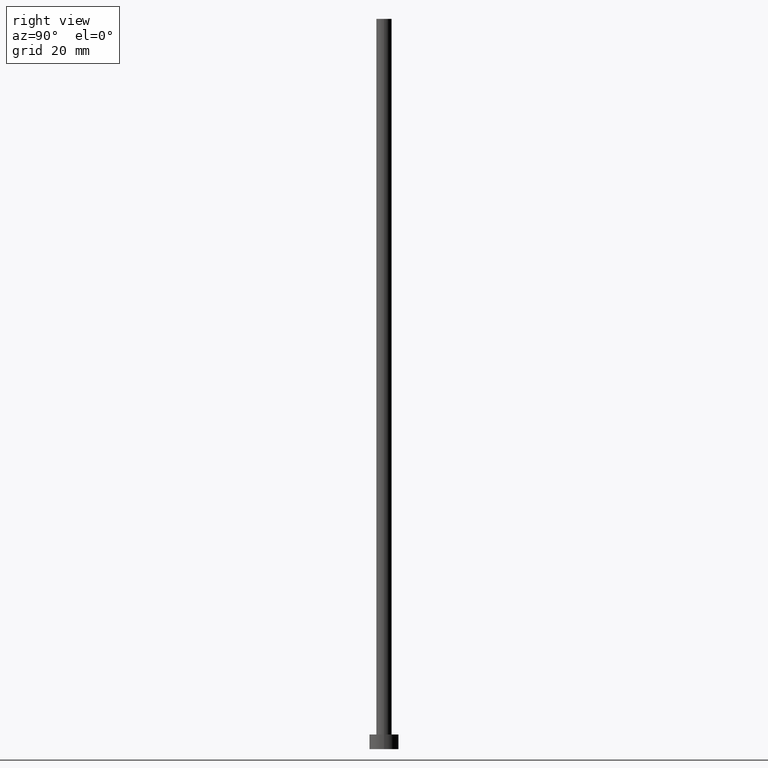
[diagram: clean part render]
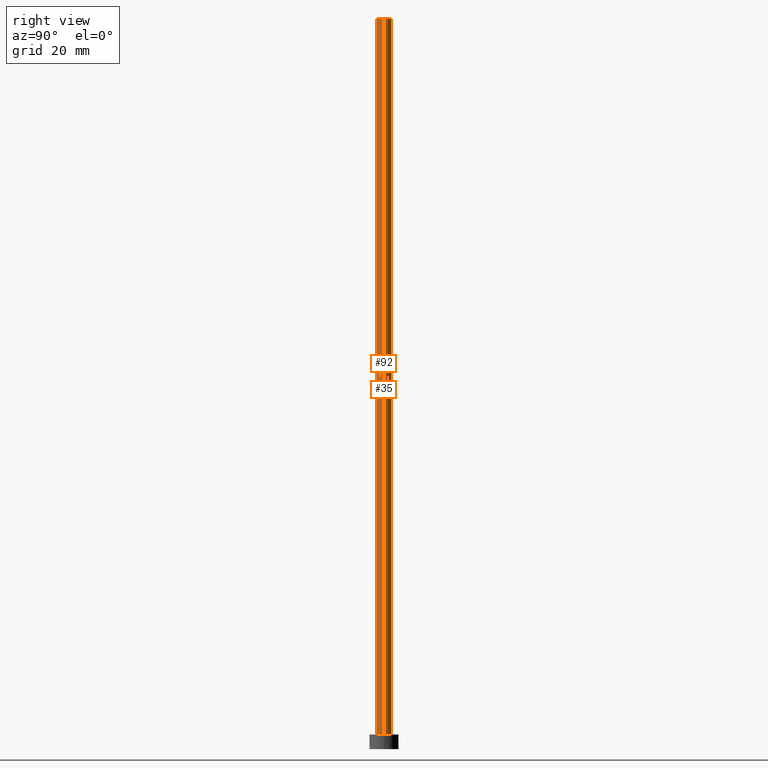
[diagram: same view with one multi-face feature highlighted, each face labeled with its STEP entity id]
A machine part, right view. The highlighted faces form ONE feature: a constant-radius fillet chain: 2 tangent blend faces with common blend radius 2.1 mm. The faces share edges in the B-rep.
Their STEP definitions:
[1] entity #92 (Cylinder):
#5 = CARTESIAN_POINT ( 'NONE',  ( 2.100000000000000089, 2.571758278209441957E-16, 4.000000000000000000 ) ) ;
#20 = DIRECTION ( 'NONE',  ( 1.000000000000000000, 0.000000000000000000, 0.000000000000000000 ) ) ;
#23 = ORIENTED_EDGE ( 'NONE', *, *, #87, .T. ) ;
#26 = EDGE_CURVE ( 'NONE', #118, #95, #142, .T. ) ;
#27 = CARTESIAN_POINT ( 'NONE',  ( -2.100000000000000089, 0.000000000000000000, 200.0000000000000000 ) ) ;
#29 = ORIENTED_EDGE ( 'NONE', *, *, #227, .F. ) ;
#36 = VERTEX_POINT ( 'NONE', #126 ) ;
#45 = CARTESIAN_POINT ( 'NONE',  ( -2.100000000000000089, 0.000000000000000000, 200.0000000000000000 ) ) ;
#49 = EDGE_LOOP ( 'NONE', ( #137, #29, #23, #176 ) ) ;
#63 = LINE ( 'NONE', #117, #232 ) ;
#77 = DIRECTION ( 'NONE',  ( -0.000000000000000000, -0.000000000000000000, -1.000000000000000000 ) ) ;
#80 = DIRECTION ( 'NONE',  ( 0.000000000000000000, 0.000000000000000000, 1.000000000000000000 ) ) ;
#85 = DIRECTION ( 'NONE',  ( -0.000000000000000000, -0.000000000000000000, -1.000000000000000000 ) ) ;
#87 = EDGE_CURVE ( 'NONE', #149, #118, #91, .T. ) ;
#91 = LINE ( 'NONE', #27, #157 ) ;
#92 = ADVANCED_FACE ( 'NONE', ( #177 ), #251, .T. ) ;
#95 = VERTEX_POINT ( 'NONE', #5 ) ;
#102 = CARTESIAN_POINT ( 'NONE',  ( 0.000000000000000000, 0.000000000000000000, 200.0000000000000000 ) ) ;
#117 = CARTESIAN_POINT ( 'NONE',  ( 2.100000000000000089, 2.571758278209441957E-16, 200.0000000000000000 ) ) ;
#118 = VERTEX_POINT ( 'NONE', #200 ) ;
#125 = EDGE_CURVE ( 'NONE', #36, #95, #63, .T. ) ;
#126 = CARTESIAN_POINT ( 'NONE',  ( 2.100000000000000089, 2.571758278209441957E-16, 200.0000000000000000 ) ) ;
#127 = DIRECTION ( 'NONE',  ( 1.000000000000000000, 0.000000000000000000, 0.000000000000000000 ) ) ;
#128 = CIRCLE ( 'NONE', #233, 2.100000000000000089 ) ;
#137 = ORIENTED_EDGE ( 'NONE', *, *, #125, .F. ) ;
#142 = CIRCLE ( 'NONE', #185, 2.100000000000000089 ) ;
#148 = DIRECTION ( 'NONE',  ( 0.000000000000000000, 0.000000000000000000, 1.000000000000000000 ) ) ;
#149 = VERTEX_POINT ( 'NONE', #45 ) ;
#157 = VECTOR ( 'NONE', #85, 1000.000000000000000 ) ;
#175 = CARTESIAN_POINT ( 'NONE',  ( 0.000000000000000000, 0.000000000000000000, 4.000000000000000000 ) ) ;
#176 = ORIENTED_EDGE ( 'NONE', *, *, #26, .T. ) ;
#177 = FACE_OUTER_BOUND ( 'NONE', #49, .T. ) ;
#185 = AXIS2_PLACEMENT_3D ( 'NONE', #175, #148, #127 ) ;
#187 = DIRECTION ( 'NONE',  ( -0.000000000000000000, -0.000000000000000000, -1.000000000000000000 ) ) ;
#190 = AXIS2_PLACEMENT_3D ( 'NONE', #225, #187, #220 ) ;
#200 = CARTESIAN_POINT ( 'NONE',  ( -2.100000000000000089, 0.000000000000000000, 4.000000000000000000 ) ) ;
#220 = DIRECTION ( 'NONE',  ( -1.000000000000000000, 0.000000000000000000, 0.000000000000000000 ) ) ;
#225 = CARTESIAN_POINT ( 'NONE',  ( 0.000000000000000000, 0.000000000000000000, 200.0000000000000000 ) ) ;
#227 = EDGE_CURVE ( 'NONE', #149, #36, #128, .T. ) ;
#232 = VECTOR ( 'NONE', #77, 1000.000000000000000 ) ;
#233 = AXIS2_PLACEMENT_3D ( 'NONE', #102, #80, #20 ) ;
#251 = CYLINDRICAL_SURFACE ( 'NONE', #190, 2.100000000000000089 ) ;
[2] entity #35 (Cylinder):
#5 = CARTESIAN_POINT ( 'NONE',  ( 2.100000000000000089, 2.571758278209441957E-16, 4.000000000000000000 ) ) ;
#21 = ORIENTED_EDGE ( 'NONE', *, *, #97, .T. ) ;
#27 = CARTESIAN_POINT ( 'NONE',  ( -2.100000000000000089, 0.000000000000000000, 200.0000000000000000 ) ) ;
#34 = CARTESIAN_POINT ( 'NONE',  ( 0.000000000000000000, 0.000000000000000000, 200.0000000000000000 ) ) ;
#35 = ADVANCED_FACE ( 'NONE', ( #181 ), #52, .T. ) ;
#36 = VERTEX_POINT ( 'NONE', #126 ) ;
#37 = CIRCLE ( 'NONE', #90, 2.100000000000000089 ) ;
#45 = CARTESIAN_POINT ( 'NONE',  ( -2.100000000000000089, 0.000000000000000000, 200.0000000000000000 ) ) ;
#47 = DIRECTION ( 'NONE',  ( -0.000000000000000000, -0.000000000000000000, -1.000000000000000000 ) ) ;
#50 = DIRECTION ( 'NONE',  ( -1.000000000000000000, 0.000000000000000000, 0.000000000000000000 ) ) ;
#52 = CYLINDRICAL_SURFACE ( 'NONE', #226, 2.100000000000000089 ) ;
#53 = CIRCLE ( 'NONE', #119, 2.100000000000000089 ) ;
#62 = EDGE_CURVE ( 'NONE', #36, #149, #53, .T. ) ;
#63 = LINE ( 'NONE', #117, #232 ) ;
#77 = DIRECTION ( 'NONE',  ( -0.000000000000000000, -0.000000000000000000, -1.000000000000000000 ) ) ;
#85 = DIRECTION ( 'NONE',  ( -0.000000000000000000, -0.000000000000000000, -1.000000000000000000 ) ) ;
#87 = EDGE_CURVE ( 'NONE', #149, #118, #91, .T. ) ;
#90 = AXIS2_PLACEMENT_3D ( 'NONE', #242, #222, #159 ) ;
#91 = LINE ( 'NONE', #27, #157 ) ;
#95 = VERTEX_POINT ( 'NONE', #5 ) ;
#97 = EDGE_CURVE ( 'NONE', #95, #118, #37, .T. ) ;
#98 = ORIENTED_EDGE ( 'NONE', *, *, #62, .F. ) ;
#110 = ORIENTED_EDGE ( 'NONE', *, *, #125, .T. ) ;
#111 = DIRECTION ( 'NONE',  ( 1.000000000000000000, 0.000000000000000000, 0.000000000000000000 ) ) ;
#117 = CARTESIAN_POINT ( 'NONE',  ( 2.100000000000000089, 2.571758278209441957E-16, 200.0000000000000000 ) ) ;
#118 = VERTEX_POINT ( 'NONE', #200 ) ;
#119 = AXIS2_PLACEMENT_3D ( 'NONE', #247, #152, #111 ) ;
#125 = EDGE_CURVE ( 'NONE', #36, #95, #63, .T. ) ;
#126 = CARTESIAN_POINT ( 'NONE',  ( 2.100000000000000089, 2.571758278209441957E-16, 200.0000000000000000 ) ) ;
#135 = ORIENTED_EDGE ( 'NONE', *, *, #87, .F. ) ;
#149 = VERTEX_POINT ( 'NONE', #45 ) ;
#152 = DIRECTION ( 'NONE',  ( 0.000000000000000000, 0.000000000000000000, 1.000000000000000000 ) ) ;
#157 = VECTOR ( 'NONE', #85, 1000.000000000000000 ) ;
#159 = DIRECTION ( 'NONE',  ( 1.000000000000000000, 0.000000000000000000, 0.000000000000000000 ) ) ;
#181 = FACE_OUTER_BOUND ( 'NONE', #246, .T. ) ;
#200 = CARTESIAN_POINT ( 'NONE',  ( -2.100000000000000089, 0.000000000000000000, 4.000000000000000000 ) ) ;
#222 = DIRECTION ( 'NONE',  ( 0.000000000000000000, 0.000000000000000000, 1.000000000000000000 ) ) ;
#226 = AXIS2_PLACEMENT_3D ( 'NONE', #34, #47, #50 ) ;
#232 = VECTOR ( 'NONE', #77, 1000.000000000000000 ) ;
#242 = CARTESIAN_POINT ( 'NONE',  ( 0.000000000000000000, 0.000000000000000000, 4.000000000000000000 ) ) ;
#246 = EDGE_LOOP ( 'NONE', ( #98, #110, #21, #135 ) ) ;
#247 = CARTESIAN_POINT ( 'NONE',  ( 0.000000000000000000, 0.000000000000000000, 200.0000000000000000 ) ) ;